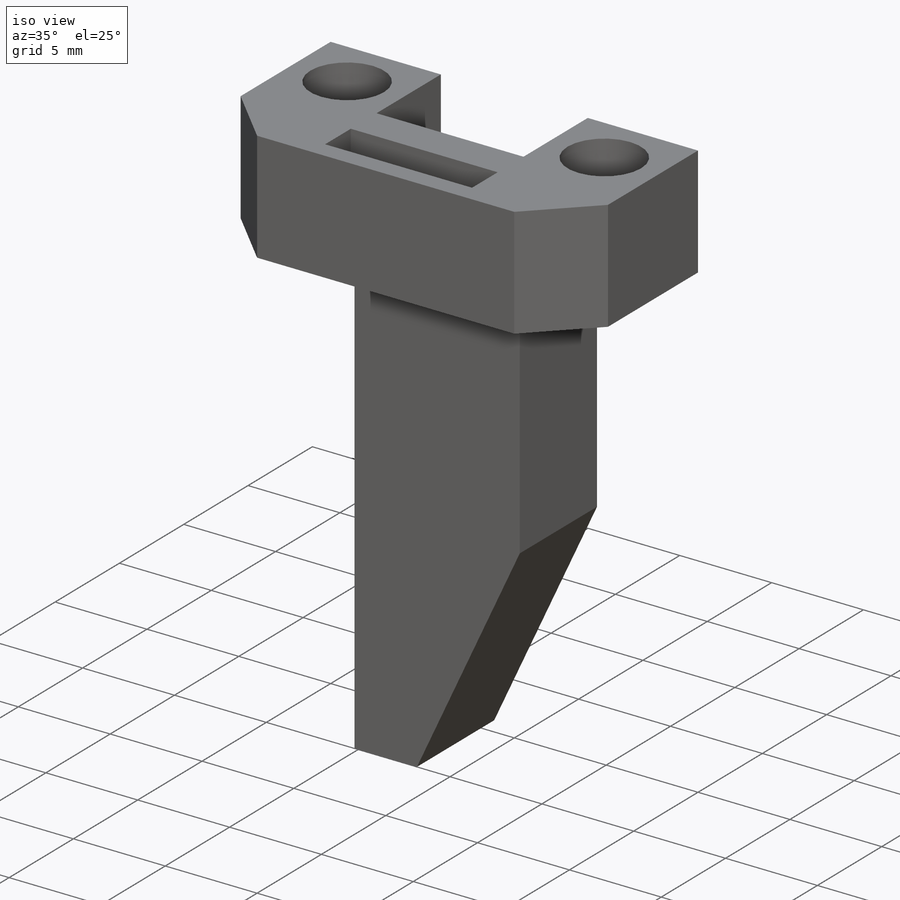
[diagram: iso view]
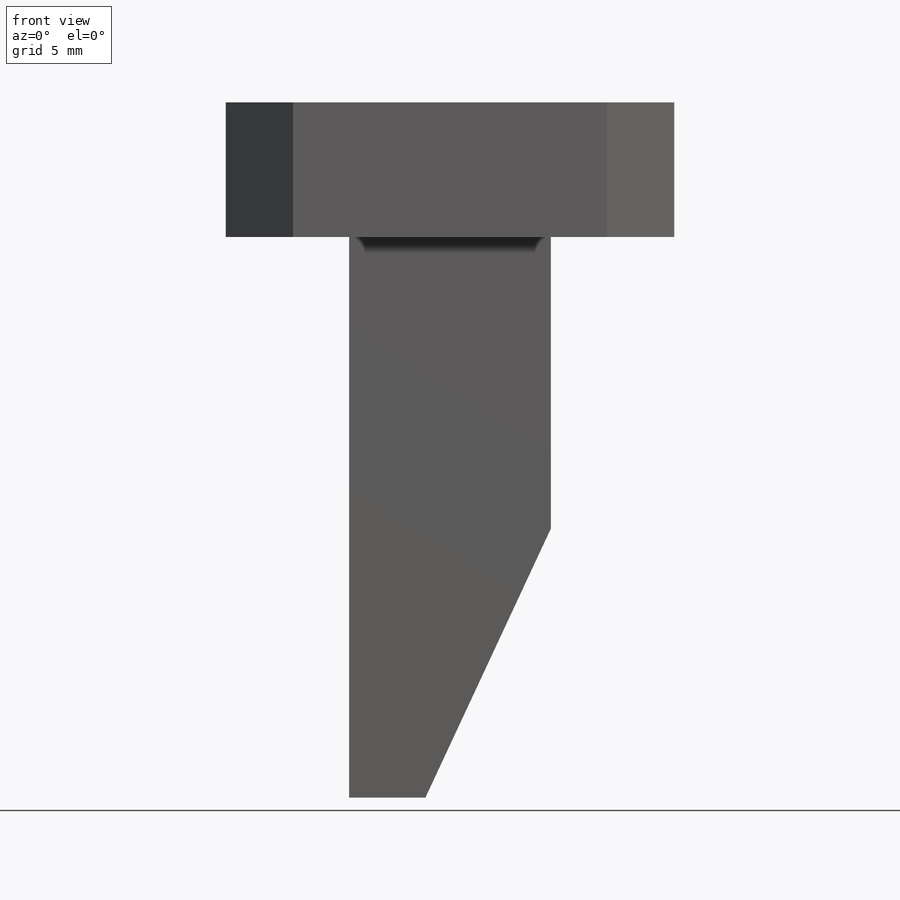
[diagram: front view]
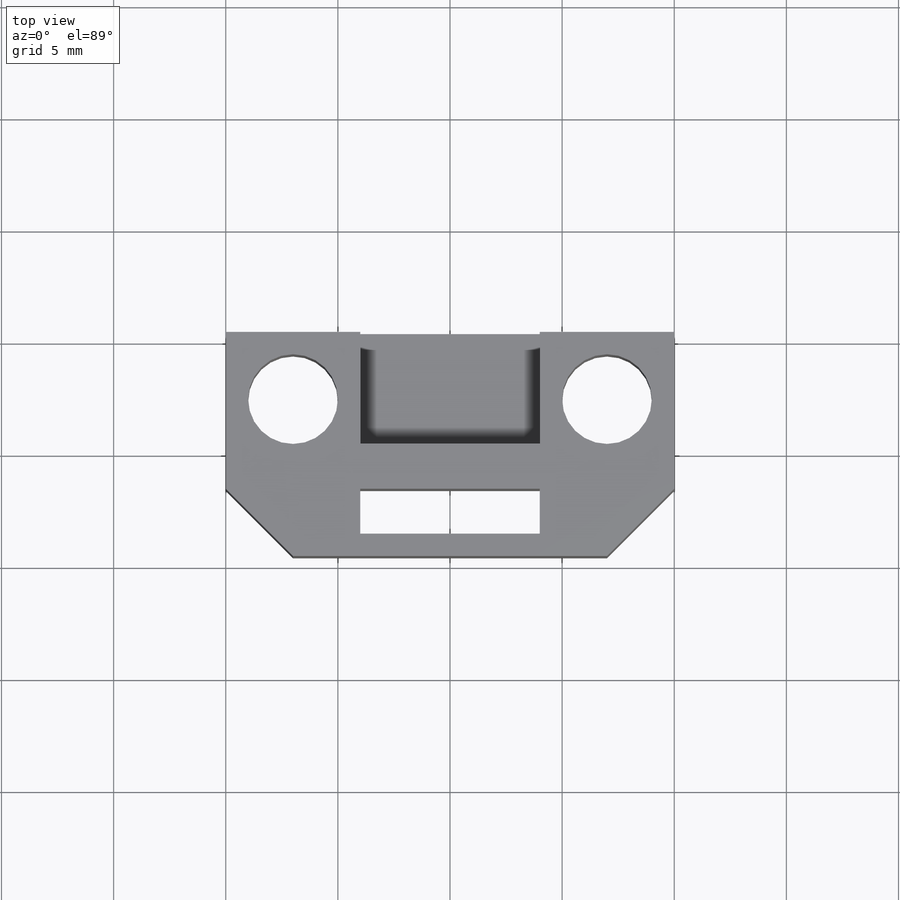
[diagram: top view]
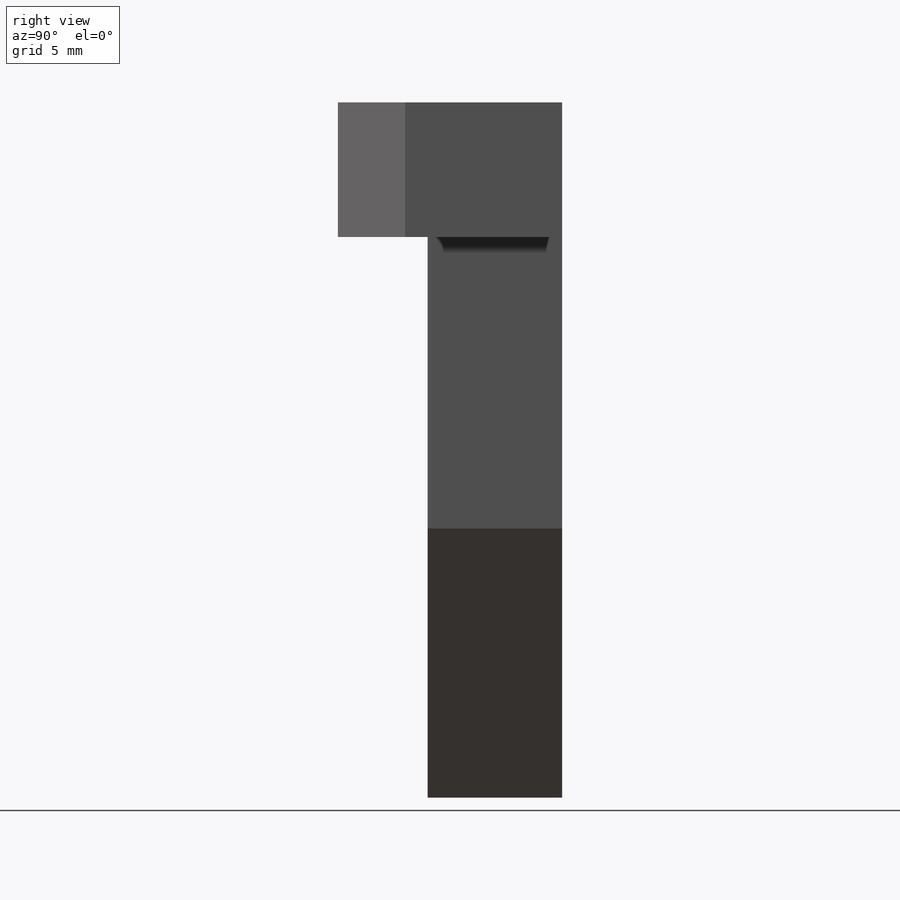
[diagram: right view]
SOLIDWORKS PART (.sldprt)
format: sldprt  version: not decoded by parser v0  size: 222,208 bytes
history: native  units: mm
features: plane x3, sketch x3, extrude x2, chamfer x2, material x1, cut_extrude x1 (+8 scaffold rows collapsed)
feature tree (20):
  scaffold x8  (default folders/planes/origin — collapsed)
  material  "材质 <未指定>"
  plane  "前视基准面"
  plane  "上视基准面"
  plane  "右视基准面"
  sketch  "草图1"  dims[c1.D1=~24.936339mm c1.D2=~48.685233mm c2.D1=5.0mm c2.D2=30.0mm c2.D3=5.0mm c2.D4=6.0mm c3.D2=4.0mm]
  extrude  "凸台-拉伸1"  Depth=6mm
  sketch  "草图2"  dims[c1.D1=5.0mm c1.D2=3.0mm c1.D3=3.0mm c1.D4=~1.209934mm c1.D5=~5.784075mm c2.D4=2.0mm c2.D5=4.0mm c2.D6=2.0mm]
  cut_extrude  "切除-拉伸3"  [1 undecoded]
  chamfer  "倒角1"  Distance=3mm Angle=45deg
  sketch  "草图5"  dims[c1.D1=~5.377771mm c1.D2=20.0mm c2.D1=6.0mm c2.D2=4.5mm c3.D1=6.0mm]
  extrude  "凸台-拉伸5"  Depth=25mm
  chamfer  "倒角3"  Distance=12mm Angle=25deg
decode coverage: 7 of 8 modeling features carry decoded parameters
note: ~ marks probable driven/reference dimensions
note: 1 parameter value undecoded
note: suppression state not decoded; provenance and decode notes live in map.json
